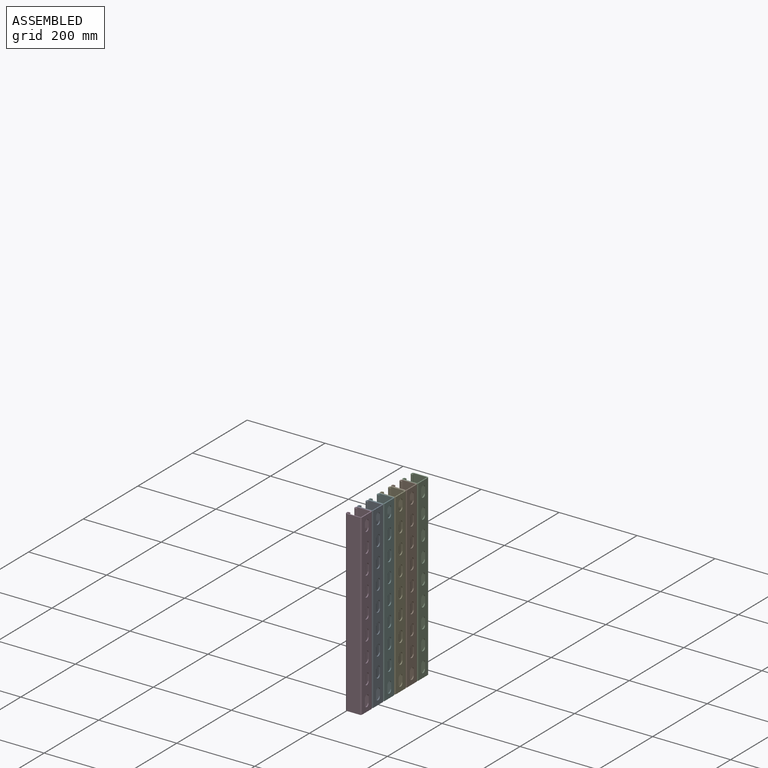
[diagram: assembled view]
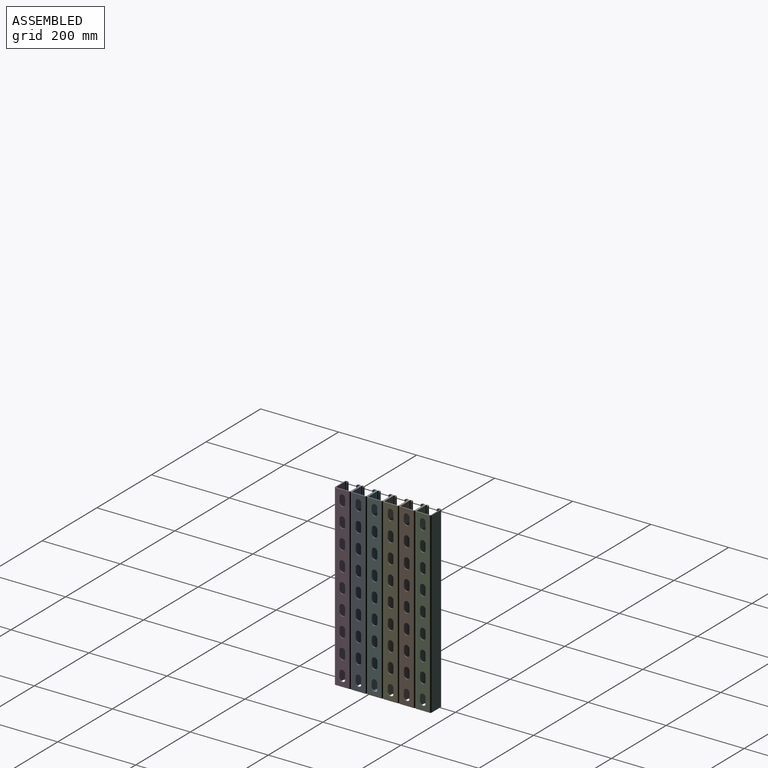
[diagram: assembled view, second angle]
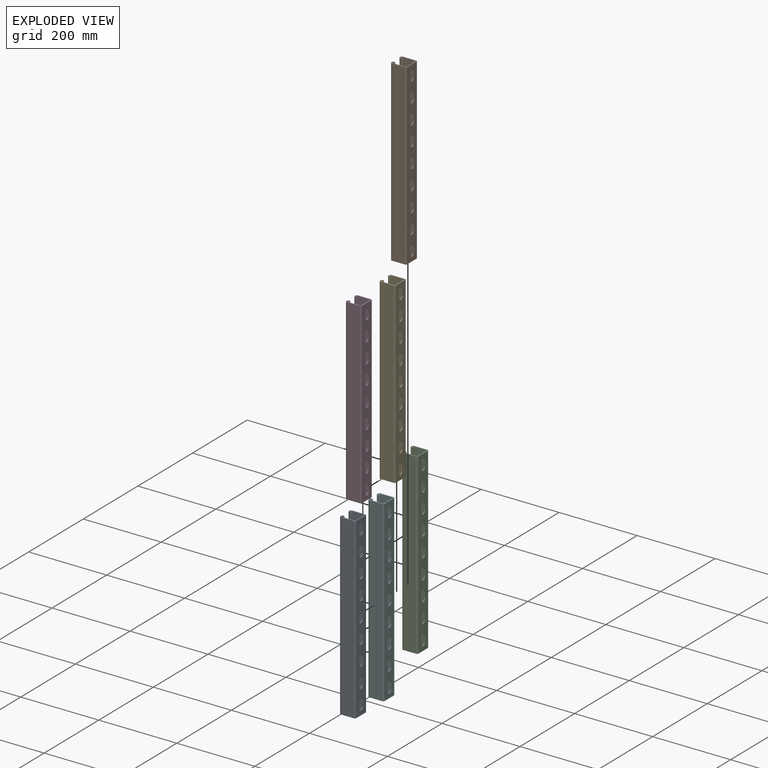
[diagram: exploded view]
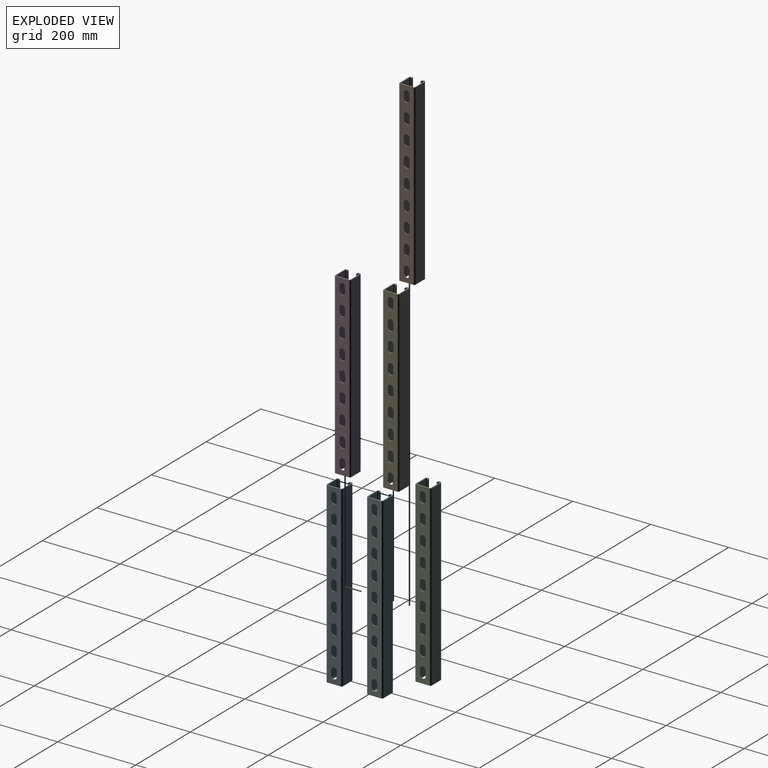
[diagram: exploded view, second angle]
ASSEMBLY  parts=6 mates=5
PART A: 66 faces, bbox 41.3x41.3x457.2 mm
  f0: plane 457.2x32.77mm, normal (0,1,0), area 14980.6mm2, adj f8,f9,f34,f65
  f1: plane 457.2x32.77mm, normal (0,-1,0), area 14980.6mm2, adj f10,f11,f34,f65
  f2: plane 457.2x1.02mm, normal (-1,0,0), area 464.5mm2, adj f11,f12,f34,f65
  f3: plane 457.2x2.41mm, normal (0,1,0), area 1100.3mm2, adj f7,f12,f34,f65
  f4: plane 457.2x2.41mm, normal (0,-1,0), area 1100.3mm2, adj f6,f13,f34,f65
  f5: plane 457.2x1.02mm, normal (-1,0,0), area 464.5mm2, adj f8,f13,f34,f65
  f6: cylinder r=1.27mm len=457.2mm, axis (0,0,1), area 1824.1mm2, adj f4,f33,f34,f65
  f7: cylinder r=1.27mm len=457.2mm, axis (0,0,1), area 1824.1mm2, adj f3,f21,f34,f65
  f8: cylinder r=5.05mm len=457.2mm, axis (0,0,1), area 3625.5mm2, adj f0,f5,f34,f65
  f9: cylinder r=3.46mm len=457.2mm, axis (0,0,1), area 2485.4mm2, adj f0,f20,f34,f65
  f10: cylinder r=3.46mm len=457.2mm, axis (0,0,1), area 2485.4mm2, adj f1,f20,f34,f65
  f11: cylinder r=5.05mm len=457.2mm, axis (0,0,1), area 3625.5mm2, adj f1,f2,f34,f65
  f12: cylinder r=3.46mm len=457.2mm, axis (0,0,1), area 2485.4mm2, adj f2,f3,f34,f65
  f13: cylinder r=3.46mm len=457.2mm, axis (0,0,1), area 2485.4mm2, adj f4,f5,f34,f65
  f14: cylinder r=7.14mm len=14.29mm, axis (1,0,0), area 57mm2, adj f20,f27,f50,f51
  f15: cylinder r=7.14mm len=14.29mm, axis (1,0,0), area 57mm2, adj f20,f27,f47,f48
  f16: cylinder r=7.14mm len=14.29mm, axis (1,0,0), area 57mm2, adj f20,f27,f44,f45
  f17: cylinder r=7.14mm len=14.29mm, axis (1,0,0), area 57mm2, adj f20,f27,f41,f42
  f18: cylinder r=7.14mm len=14.29mm, axis (1,0,0), area 57mm2, adj f20,f27,f39,f40
  f19: cylinder r=7.14mm len=14.29mm, axis (1,0,0), area 57mm2, adj f20,f27,f36,f37
  f20: plane 457.2x34.35mm, normal (1,0,0), area 12426.3mm2, adj f9,f10,f14,f15,f16,f17,f18,f19
  f21: plane 457.2x2.41mm, normal (0,-1,0), area 1100.3mm2, adj f7,f22,f34,f65
  f22: cylinder r=0.92mm len=457.2mm, axis (0,0,1), area 661.3mm2, adj f21,f23,f34,f65
  f23: plane 457.2x1.02mm, normal (1,0,0), area 464.5mm2, adj f22,f24,f34,f65
  f24: cylinder r=2.51mm len=457.2mm, axis (0,0,1), area 1801.3mm2, adj f23,f25,f34,f65
  f25: plane 457.2x32.77mm, normal (0,1,0), area 14980.6mm2, adj f24,f26,f34,f65
  f26: cylinder r=0.92mm len=457.2mm, axis (0,0,1), area 661.3mm2, adj f25,f27,f34,f65
  f27: plane 457.2x34.35mm, normal (-1,0,0), area 12426.3mm2, adj f14,f15,f16,f17,f18,f19,f26,f28
  f28: cylinder r=0.92mm len=457.2mm, axis (0,0,1), area 661.3mm2, adj f27,f29,f34,f65
  f29: plane 457.2x32.77mm, normal (0,-1,0), area 14980.6mm2, adj f28,f30,f34,f65
  f30: cylinder r=2.51mm len=457.2mm, axis (0,0,1), area 1801.3mm2, adj f29,f31,f34,f65
  f31: plane 457.2x1.02mm, normal (1,0,0), area 464.5mm2, adj f30,f32,f34,f65
  f32: cylinder r=0.92mm len=457.2mm, axis (0,0,1), area 661.3mm2, adj f31,f33,f34,f65
  f33: plane 457.2x2.41mm, normal (0,1,0), area 1100.3mm2, adj f6,f32,f34,f65
  f34: plane 41.28x41.28mm, normal (0,0,1), area 341.3mm2, adj f0,f1,f2,f3,f4,f5,f6,f7
  f35: cylinder r=7.14mm len=14.29mm, axis (1,0,0), area 57mm2, adj f20,f27,f36,f37
  f36: plane 14.29x2.54mm, normal (0,-1,0), area 36.3mm2, adj f19,f20,f27,f35
  f37: plane 14.29x2.54mm, normal (0,1,0), area 36.3mm2, adj f19,f20,f27,f35
  f38: cylinder r=7.14mm len=14.29mm, axis (1,0,0), area 57mm2, adj f20,f27,f39,f40
  f39: plane 14.29x2.54mm, normal (0,-1,0), area 36.3mm2, adj f18,f20,f27,f38
  f40: plane 14.29x2.54mm, normal (0,1,0), area 36.3mm2, adj f18,f20,f27,f38
  f41: plane 14.29x2.54mm, normal (0,1,0), area 36.3mm2, adj f17,f20,f27,f43
  f42: plane 14.29x2.54mm, normal (0,-1,0), area 36.3mm2, adj f17,f20,f27,f43
  f43: cylinder r=7.14mm len=14.29mm, axis (1,0,0), area 57mm2, adj f20,f27,f41,f42
  f44: plane 14.29x2.54mm, normal (0,1,0), area 36.3mm2, adj f16,f20,f27,f46
  f45: plane 14.29x2.54mm, normal (0,-1,0), area 36.3mm2, adj f16,f20,f27,f46
  f46: cylinder r=7.14mm len=14.29mm, axis (1,0,0), area 57mm2, adj f20,f27,f44,f45
  f47: plane 14.29x2.54mm, normal (0,1,0), area 36.3mm2, adj f15,f20,f27,f49
  f48: plane 14.29x2.54mm, normal (0,-1,0), area 36.3mm2, adj f15,f20,f27,f49
  f49: cylinder r=7.14mm len=14.29mm, axis (1,0,0), area 57mm2, adj f20,f27,f47,f48
  f50: plane 14.29x2.54mm, normal (0,1,0), area 36.3mm2, adj f14,f20,f27,f52
  f51: plane 14.29x2.54mm, normal (0,-1,0), area 36.3mm2, adj f14,f20,f27,f52
  f52: cylinder r=7.14mm len=14.29mm, axis (1,0,0), area 57mm2, adj f20,f27,f50,f51
  f53: cylinder r=7.14mm len=14.29mm, axis (1,0,0), area 57mm2, adj f20,f27,f62,f63
  f54: cylinder r=7.14mm len=14.29mm, axis (1,0,0), area 57mm2, adj f20,f27,f60,f61
  f55: cylinder r=7.14mm len=14.29mm, axis (1,0,0), area 57mm2, adj f20,f27,f57,f58
  f56: cylinder r=7.14mm len=14.29mm, axis (1,0,0), area 57mm2, adj f20,f27,f57,f58
  f57: plane 14.29x2.54mm, normal (0,-1,0), area 36.3mm2, adj f20,f27,f55,f56
  f58: plane 14.29x2.54mm, normal (0,1,0), area 36.3mm2, adj f20,f27,f55,f56
  f59: cylinder r=7.14mm len=14.29mm, axis (1,0,0), area 57mm2, adj f20,f27,f60,f61
  f60: plane 14.29x2.54mm, normal (0,-1,0), area 36.3mm2, adj f20,f27,f54,f59
  f61: plane 14.29x2.54mm, normal (0,1,0), area 36.3mm2, adj f20,f27,f54,f59
  f62: plane 14.29x2.54mm, normal (0,1,0), area 36.3mm2, adj f20,f27,f53,f64
  f63: plane 14.29x2.54mm, normal (0,-1,0), area 36.3mm2, adj f20,f27,f53,f64
  f64: cylinder r=7.14mm len=14.29mm, axis (1,0,0), area 57mm2, adj f20,f27,f62,f63
  f65: plane 41.28x41.28mm, normal (0,0,-1), area 341.3mm2, adj f0,f1,f2,f3,f4,f5,f6,f7
PART B: same geometry as A
PART C: same geometry as A
PART D: same geometry as A
PART E: same geometry as A
PART F: same geometry as A
PLACE A t=(847.3,584.01,302.91)mm
PLACE B t=(847.3,707.84,302.91)mm
PLACE C t=(847.3,749.11,302.91)mm
PLACE D t=(847.3,542.74,302.91)mm
PLACE E t=(847.3,666.56,302.91)mm
PLACE F t=(847.3,625.29,302.91)mm
MATE fastened D.f34 <-> A.f34  axis (0,0,1) through (827.45,563.38,302.91)mm
MATE fastened C.f34 <-> B.f34  axis (0,0,1) through (827.45,728.48,302.91)mm
MATE fastened F.f34 <-> A.f34  axis (0,0,1) through (827.45,604.65,302.91)mm
MATE fastened B.f34 <-> E.f34  axis (0,0,1) through (827.45,687.2,302.91)mm
MATE fastened E.f34 <-> F.f34  axis (0,0,1) through (827.45,645.93,302.91)mm
